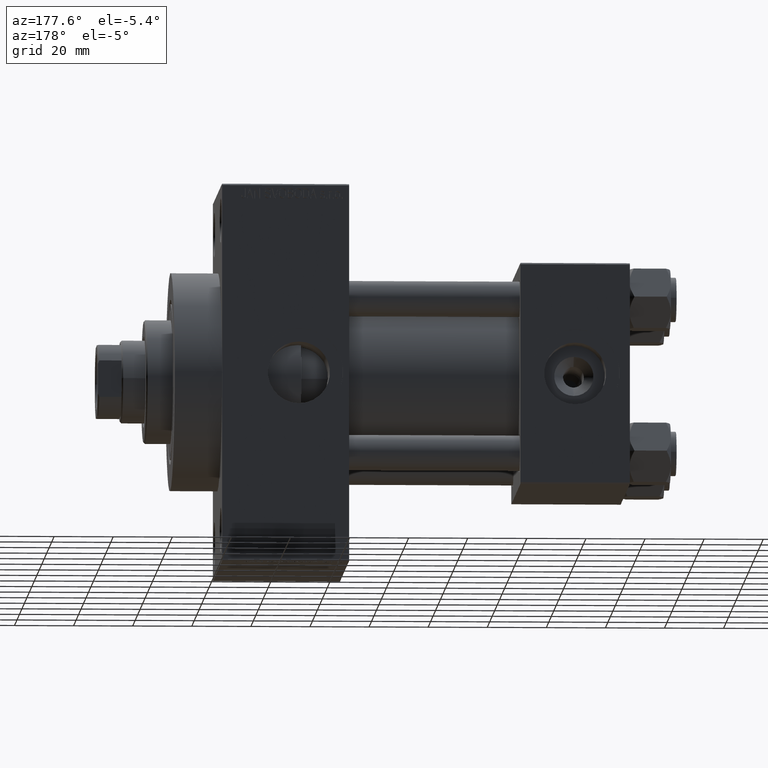
[diagram: clean part render]
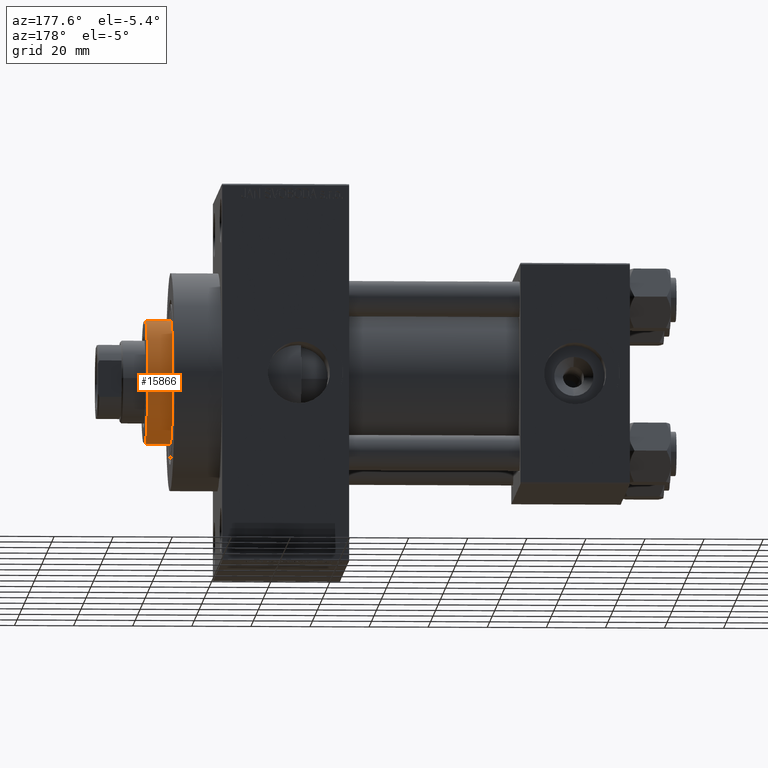
[diagram: same view with one face highlighted and labeled with its STEP entity id]
A machine part, auxiliary view. The second image highlights one B-rep face of the part: STEP entity #15866.
In plain terms, the highlighted cylindrical surface (partial cylindrical patch) has radius 21 mm, axis along (-1, 0, 0).
Its self-contained STEP definition (entity closure, byte-faithful):
#391 = DIRECTION ( 'NONE',  ( 1.000000000000000000, 0.000000000000000000, 0.000000000000000000 ) ) ;
#1636 = CIRCLE ( 'NONE', #35996, 21.00000000000000000 ) ;
#1923 = DIRECTION ( 'NONE',  ( -0.000000000000000000, -0.000000000000000000, -1.000000000000000000 ) ) ;
#2276 = VERTEX_POINT ( 'NONE', #7311 ) ;
#2416 = LINE ( 'NONE', #21172, #38780 ) ;
#4056 = CARTESIAN_POINT ( 'NONE',  ( 21.00000000000000000, 2.571758278209441661E-15, 51.75999999999999801 ) ) ;
#5198 = CARTESIAN_POINT ( 'NONE',  ( -21.00000000000000000, 0.000000000000000000, 51.75999999999999801 ) ) ;
#7055 = VECTOR ( 'NONE', #9336, 1000.000000000000000 ) ;
#7311 = CARTESIAN_POINT ( 'NONE',  ( -21.00000000000000000, 0.000000000000000000, 43.25999999999999801 ) ) ;
#7892 = CARTESIAN_POINT ( 'NONE',  ( 0.000000000000000000, 0.000000000000000000, 51.75999999999999801 ) ) ;
#8206 = EDGE_CURVE ( 'NONE', #12837, #16976, #2416, .T. ) ;
#9336 = DIRECTION ( 'NONE',  ( -0.000000000000000000, -0.000000000000000000, -1.000000000000000000 ) ) ;
#11504 = ORIENTED_EDGE ( 'NONE', *, *, #8206, .F. ) ;
#12539 = ORIENTED_EDGE ( 'NONE', *, *, #18293, .T. ) ;
#12837 = VERTEX_POINT ( 'NONE', #4056 ) ;
#13313 = EDGE_CURVE ( 'NONE', #2276, #16976, #37242, .T. ) ;
#15866 = ADVANCED_FACE ( 'NONE', ( #46048 ), #30523, .T. ) ;
#15988 = DIRECTION ( 'NONE',  ( -1.000000000000000000, 0.000000000000000000, 0.000000000000000000 ) ) ;
#16976 = VERTEX_POINT ( 'NONE', #38352 ) ;
#18293 = EDGE_CURVE ( 'NONE', #31265, #2276, #32118, .T. ) ;
#21172 = CARTESIAN_POINT ( 'NONE',  ( 21.00000000000000000, 2.571758278209441661E-15, 52.25999999999999801 ) ) ;
#26513 = CARTESIAN_POINT ( 'NONE',  ( 0.000000000000000000, 0.000000000000000000, 52.25999999999999801 ) ) ;
#27228 = ORIENTED_EDGE ( 'NONE', *, *, #13313, .T. ) ;
#27361 = EDGE_LOOP ( 'NONE', ( #11504, #40576, #12539, #27228 ) ) ;
#27958 = EDGE_CURVE ( 'NONE', #12837, #31265, #1636, .T. ) ;
#30523 = CYLINDRICAL_SURFACE ( 'NONE', #37348, 21.00000000000000000 ) ;
#31265 = VERTEX_POINT ( 'NONE', #5198 ) ;
#31510 = DIRECTION ( 'NONE',  ( 0.000000000000000000, 0.000000000000000000, 1.000000000000000000 ) ) ;
#32118 = LINE ( 'NONE', #43631, #7055 ) ;
#34533 = DIRECTION ( 'NONE',  ( 1.000000000000000000, 0.000000000000000000, 0.000000000000000000 ) ) ;
#35394 = DIRECTION ( 'NONE',  ( 0.000000000000000000, 0.000000000000000000, -1.000000000000000000 ) ) ;
#35996 = AXIS2_PLACEMENT_3D ( 'NONE', #7892, #35394, #391 ) ;
#37242 = CIRCLE ( 'NONE', #44436, 21.00000000000000000 ) ;
#37348 = AXIS2_PLACEMENT_3D ( 'NONE', #26513, #38045, #15988 ) ;
#38045 = DIRECTION ( 'NONE',  ( -0.000000000000000000, -0.000000000000000000, -1.000000000000000000 ) ) ;
#38352 = CARTESIAN_POINT ( 'NONE',  ( 21.00000000000000000, 2.571758278209441661E-15, 43.25999999999999801 ) ) ;
#38536 = CARTESIAN_POINT ( 'NONE',  ( 0.000000000000000000, 0.000000000000000000, 43.25999999999999801 ) ) ;
#38780 = VECTOR ( 'NONE', #1923, 1000.000000000000000 ) ;
#40576 = ORIENTED_EDGE ( 'NONE', *, *, #27958, .T. ) ;
#43631 = CARTESIAN_POINT ( 'NONE',  ( -21.00000000000000000, 0.000000000000000000, 52.25999999999999801 ) ) ;
#44436 = AXIS2_PLACEMENT_3D ( 'NONE', #38536, #31510, #34533 ) ;
#46048 = FACE_OUTER_BOUND ( 'NONE', #27361, .T. ) ;